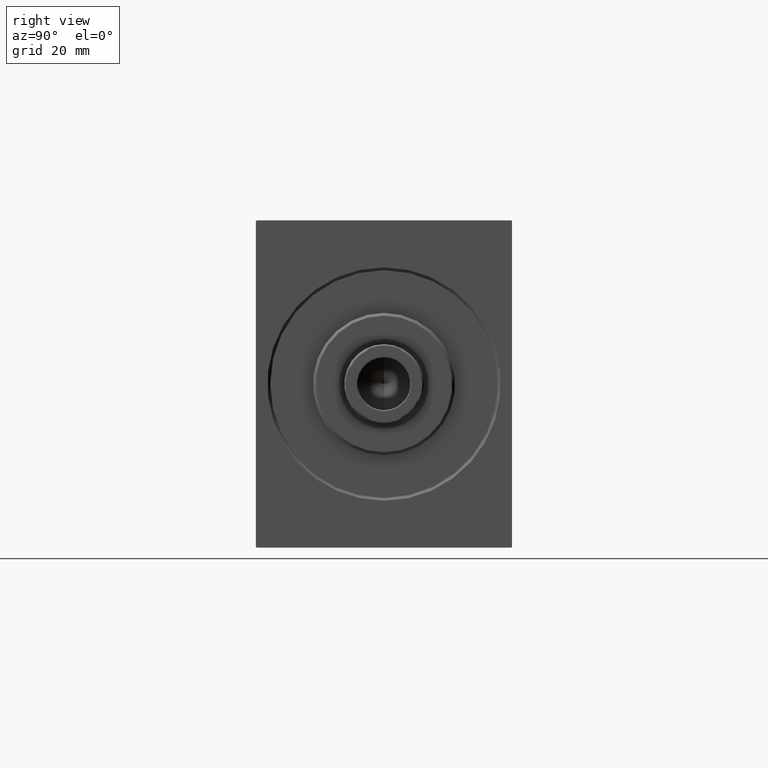
[diagram: clean part render]
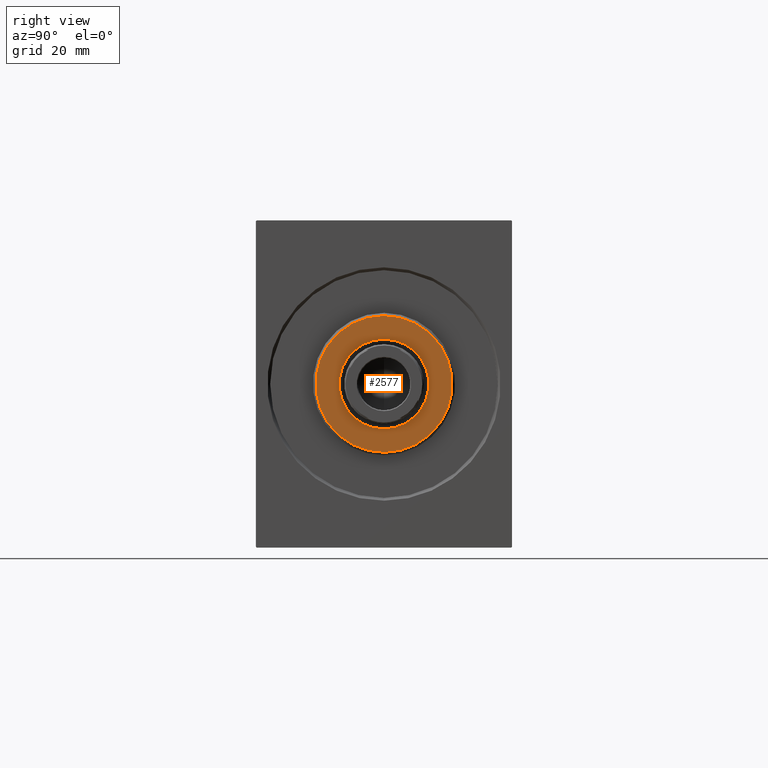
[diagram: same view with one face highlighted and labeled with its STEP entity id]
A machine part, right view. The second image highlights one B-rep face of the part: STEP entity #2577.
In plain terms, the highlighted planar face has unit normal (1, 0, 0).
Its self-contained STEP definition (entity closure, byte-faithful):
#510 = CARTESIAN_POINT ( 'NONE',  ( 3.000000000000000000, 3.000384657911014285E-15, -23.99999999999997868 ) ) ;
#880 = VERTEX_POINT ( 'NONE', #21633 ) ;
#2577 = ADVANCED_FACE ( 'NONE', ( #36615, #40286 ), #6680, .T. ) ;
#2903 = ORIENTED_EDGE ( 'NONE', *, *, #31329, .T. ) ;
#4222 = CARTESIAN_POINT ( 'NONE',  ( 3.000000000000000000, 0.000000000000000000, 0.000000000000000000 ) ) ;
#6177 = EDGE_CURVE ( 'NONE', #880, #35785, #26178, .T. ) ;
#6680 = PLANE ( 'NONE',  #34361 ) ;
#6750 = DIRECTION ( 'NONE',  ( 0.000000000000000000, 0.000000000000000000, -1.000000000000000000 ) ) ;
#7163 = DIRECTION ( 'NONE',  ( 1.000000000000000000, -0.000000000000000000, 0.000000000000000000 ) ) ;
#10368 = CARTESIAN_POINT ( 'NONE',  ( 3.000000000000000000, 0.000000000000000000, 0.000000000000000000 ) ) ;
#10913 = DIRECTION ( 'NONE',  ( 0.000000000000000000, 0.000000000000000000, -1.000000000000000000 ) ) ;
#13971 = DIRECTION ( 'NONE',  ( 0.000000000000000000, 0.000000000000000000, -1.000000000000000000 ) ) ;
#14645 = VERTEX_POINT ( 'NONE', #510 ) ;
#15733 = CIRCLE ( 'NONE', #29585, 23.99999999999997868 ) ;
#15817 = VERTEX_POINT ( 'NONE', #27883 ) ;
#17527 = CIRCLE ( 'NONE', #38994, 15.75000000000000000 ) ;
#18811 = EDGE_CURVE ( 'NONE', #35785, #880, #17527, .T. ) ;
#20704 = EDGE_LOOP ( 'NONE', ( #2903, #31506 ) ) ;
#20765 = DIRECTION ( 'NONE',  ( 1.000000000000000000, -0.000000000000000000, 0.000000000000000000 ) ) ;
#20975 = EDGE_CURVE ( 'NONE', #14645, #15817, #22415, .T. ) ;
#21133 = DIRECTION ( 'NONE',  ( 1.000000000000000000, -0.000000000000000000, 0.000000000000000000 ) ) ;
#21288 = CARTESIAN_POINT ( 'NONE',  ( 3.000000000000000000, 0.000000000000000000, 15.75000000000000000 ) ) ;
#21633 = CARTESIAN_POINT ( 'NONE',  ( 3.000000000000000000, 1.928818708657080950E-15, -15.75000000000000000 ) ) ;
#22388 = AXIS2_PLACEMENT_3D ( 'NONE', #4222, #21133, #13971 ) ;
#22415 = CIRCLE ( 'NONE', #22388, 23.99999999999997868 ) ;
#24973 = CARTESIAN_POINT ( 'NONE',  ( 3.000000000000000000, 0.000000000000000000, 0.000000000000000000 ) ) ;
#26178 = CIRCLE ( 'NONE', #34509, 15.75000000000000000 ) ;
#27883 = CARTESIAN_POINT ( 'NONE',  ( 3.000000000000000000, 0.000000000000000000, 23.99999999999997868 ) ) ;
#29585 = AXIS2_PLACEMENT_3D ( 'NONE', #34052, #7163, #6750 ) ;
#30855 = DIRECTION ( 'NONE',  ( -1.000000000000000000, 0.000000000000000000, -0.000000000000000000 ) ) ;
#31117 = CARTESIAN_POINT ( 'NONE',  ( 3.000000000000000000, 0.000000000000000000, 0.000000000000000000 ) ) ;
#31192 = ORIENTED_EDGE ( 'NONE', *, *, #18811, .T. ) ;
#31329 = EDGE_CURVE ( 'NONE', #15817, #14645, #15733, .T. ) ;
#31506 = ORIENTED_EDGE ( 'NONE', *, *, #20975, .T. ) ;
#33993 = DIRECTION ( 'NONE',  ( 0.000000000000000000, 0.000000000000000000, -1.000000000000000000 ) ) ;
#34052 = CARTESIAN_POINT ( 'NONE',  ( 3.000000000000000000, 0.000000000000000000, 0.000000000000000000 ) ) ;
#34361 = AXIS2_PLACEMENT_3D ( 'NONE', #10368, #20765, #33993 ) ;
#34509 = AXIS2_PLACEMENT_3D ( 'NONE', #24973, #30855, #10913 ) ;
#35785 = VERTEX_POINT ( 'NONE', #21288 ) ;
#36615 = FACE_OUTER_BOUND ( 'NONE', #20704, .T. ) ;
#38994 = AXIS2_PLACEMENT_3D ( 'NONE', #31117, #40456, #40670 ) ;
#40286 = FACE_BOUND ( 'NONE', #41452, .T. ) ;
#40456 = DIRECTION ( 'NONE',  ( -1.000000000000000000, 0.000000000000000000, -0.000000000000000000 ) ) ;
#40670 = DIRECTION ( 'NONE',  ( 0.000000000000000000, 0.000000000000000000, -1.000000000000000000 ) ) ;
#41270 = ORIENTED_EDGE ( 'NONE', *, *, #6177, .T. ) ;
#41452 = EDGE_LOOP ( 'NONE', ( #31192, #41270 ) ) ;